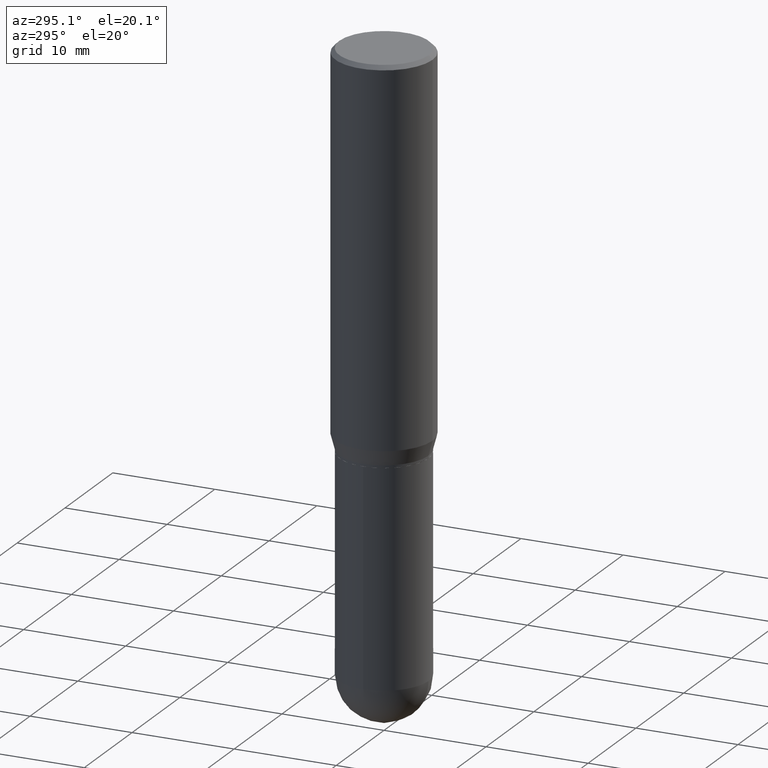
[diagram: clean part render]
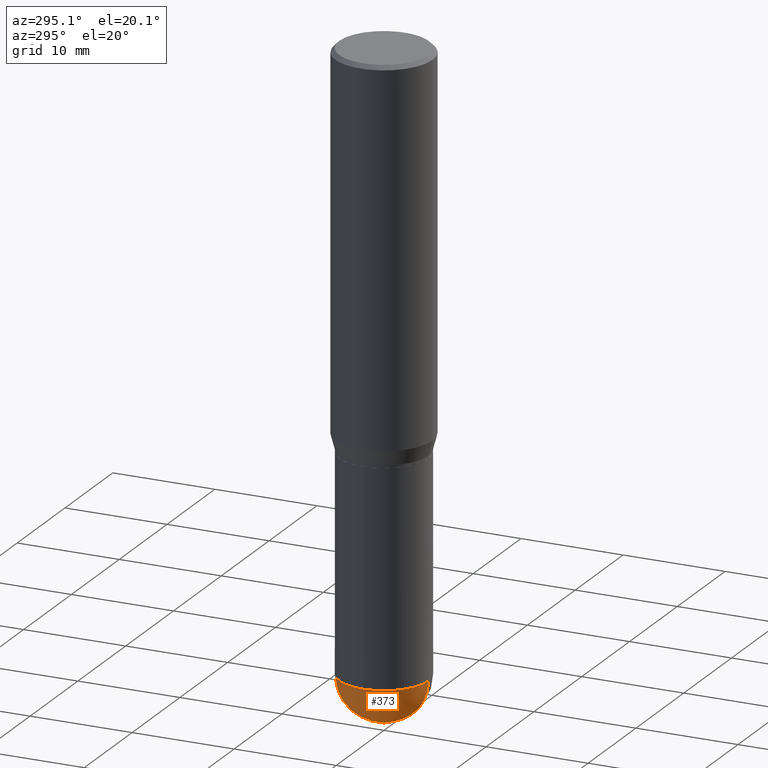
[diagram: same view with one face highlighted and labeled with its STEP entity id]
A machine part, auxiliary view. The second image highlights one B-rep face of the part: STEP entity #373.
In plain terms, the highlighted spherical surface has radius 4.3663 mm.
Its self-contained STEP definition (entity closure, byte-faithful):
#38 = DIRECTION ( 'NONE',  ( 6.982962677686265922E-15, 1.000000000000000000, -3.178415350394722463E-15 ) ) ;
#47 = VERTEX_POINT ( 'NONE', #294 ) ;
#54 = AXIS2_PLACEMENT_3D ( 'NONE', #464, #500, #465 ) ;
#67 = CARTESIAN_POINT ( 'NONE',  ( 1.200371284294326039E-15, 0.1718999999999918094, -2.328100000000000946 ) ) ;
#74 = CARTESIAN_POINT ( 'NONE',  ( -1.221422962771555008E-15, -0.1719000000000081296, -2.328099999999999614 ) ) ;
#92 = EDGE_CURVE ( 'NONE', #437, #264, #392, .T. ) ;
#96 = EDGE_CURVE ( 'NONE', #47, #164, #168, .T. ) ;
#100 = DIRECTION ( 'NONE',  ( 1.000000000000000000, -6.982962677686265922E-15, 4.883557194083112340E-29 ) ) ;
#110 = ORIENTED_EDGE ( 'NONE', *, *, #96, .T. ) ;
#112 = CARTESIAN_POINT ( 'NONE',  ( 5.678595619168622984E-29, -8.149569383438070914E-15, -2.328100000000000058 ) ) ;
#137 = DIRECTION ( 'NONE',  ( -2.445468806185136597E-29, 3.491481338843145583E-15, 1.000000000000000000 ) ) ;
#140 = ORIENTED_EDGE ( 'NONE', *, *, #309, .F. ) ;
#141 = DIRECTION ( 'NONE',  ( -7.105427357601001070E-15, -1.000000000000000000, 0.000000000000000000 ) ) ;
#161 = ORIENTED_EDGE ( 'NONE', *, *, #92, .F. ) ;
#164 = VERTEX_POINT ( 'NONE', #74 ) ;
#168 = CIRCLE ( 'NONE', #356, 0.1718999999999999417 ) ;
#210 = CARTESIAN_POINT ( 'NONE',  ( 5.678595619168622984E-29, -8.149569383438070914E-15, -2.328100000000000058 ) ) ;
#242 = AXIS2_PLACEMENT_3D ( 'NONE', #420, #137, #409 ) ;
#253 = EDGE_CURVE ( 'NONE', #264, #164, #302, .T. ) ;
#264 = VERTEX_POINT ( 'NONE', #308 ) ;
#288 = EDGE_LOOP ( 'NONE', ( #140, #110, #320, #161 ) ) ;
#294 = CARTESIAN_POINT ( 'NONE',  ( 6.106321861207344902E-29, -8.739229186346536619E-15, -2.500000000000000000 ) ) ;
#296 = CIRCLE ( 'NONE', #449, 0.1718999999999999417 ) ;
#302 = CIRCLE ( 'NONE', #54, 0.1719000000000000250 ) ;
#307 = FACE_OUTER_BOUND ( 'NONE', #288, .T. ) ;
#308 = CARTESIAN_POINT ( 'NONE',  ( -0.1719000000000000250, -5.461446893841112247E-15, -2.328100000000000058 ) ) ;
#309 = EDGE_CURVE ( 'NONE', #47, #437, #296, .T. ) ;
#320 = ORIENTED_EDGE ( 'NONE', *, *, #253, .F. ) ;
#329 = DIRECTION ( 'NONE',  ( 6.982962677686266711E-15, 1.000000000000000000, 0.000000000000000000 ) ) ;
#344 = SPHERICAL_SURFACE ( 'NONE', #462, 0.1718999999999999417 ) ;
#356 = AXIS2_PLACEMENT_3D ( 'NONE', #450, #457, #141 ) ;
#373 = ADVANCED_FACE ( 'NONE', ( #307 ), #344, .T. ) ;
#392 = CIRCLE ( 'NONE', #242, 0.1719000000000000250 ) ;
#409 = DIRECTION ( 'NONE',  ( 1.000000000000000000, -6.982962677686271444E-15, 0.000000000000000000 ) ) ;
#420 = CARTESIAN_POINT ( 'NONE',  ( 5.693295927679617284E-29, -8.128517704960729139E-15, -2.328100000000000058 ) ) ;
#437 = VERTEX_POINT ( 'NONE', #67 ) ;
#449 = AXIS2_PLACEMENT_3D ( 'NONE', #210, #100, #329 ) ;
#450 = CARTESIAN_POINT ( 'NONE',  ( 5.678595619168622984E-29, -8.149569383438070914E-15, -2.328100000000000058 ) ) ;
#457 = DIRECTION ( 'NONE',  ( -1.000000000000000000, 7.105427357601001070E-15, -4.926315508542082329E-29 ) ) ;
#460 = DIRECTION ( 'NONE',  ( -1.000000000000000000, 6.982962677686265922E-15, -4.883557194083112340E-29 ) ) ;
#462 = AXIS2_PLACEMENT_3D ( 'NONE', #112, #460, #38 ) ;
#464 = CARTESIAN_POINT ( 'NONE',  ( 5.693295927679617284E-29, -8.128517704960729139E-15, -2.328100000000000058 ) ) ;
#465 = DIRECTION ( 'NONE',  ( 1.000000000000000000, -6.982962677686271444E-15, 0.000000000000000000 ) ) ;
#500 = DIRECTION ( 'NONE',  ( -2.445468806185136597E-29, 3.491481338843145583E-15, 1.000000000000000000 ) ) ;